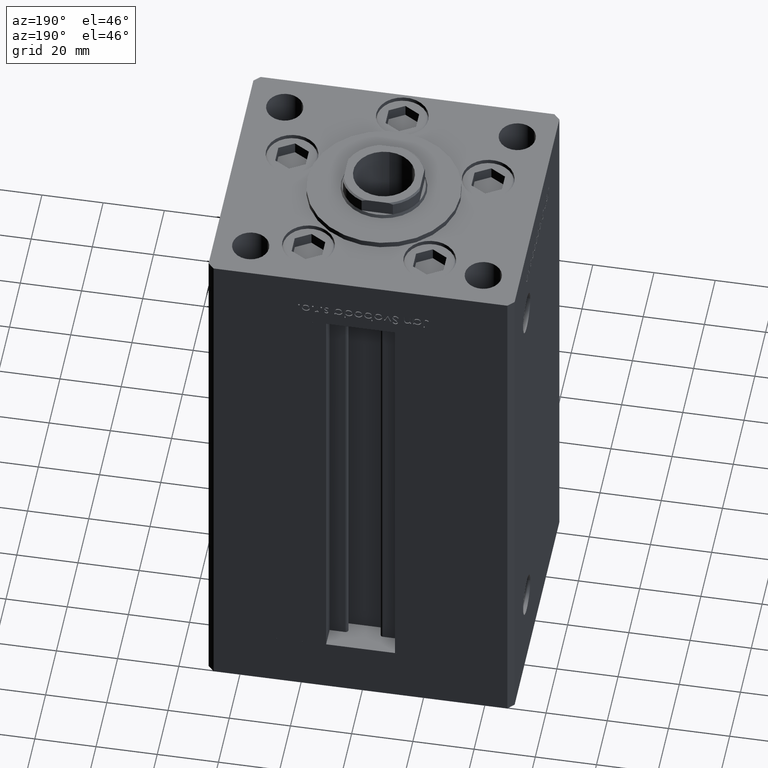
[diagram: clean part render]
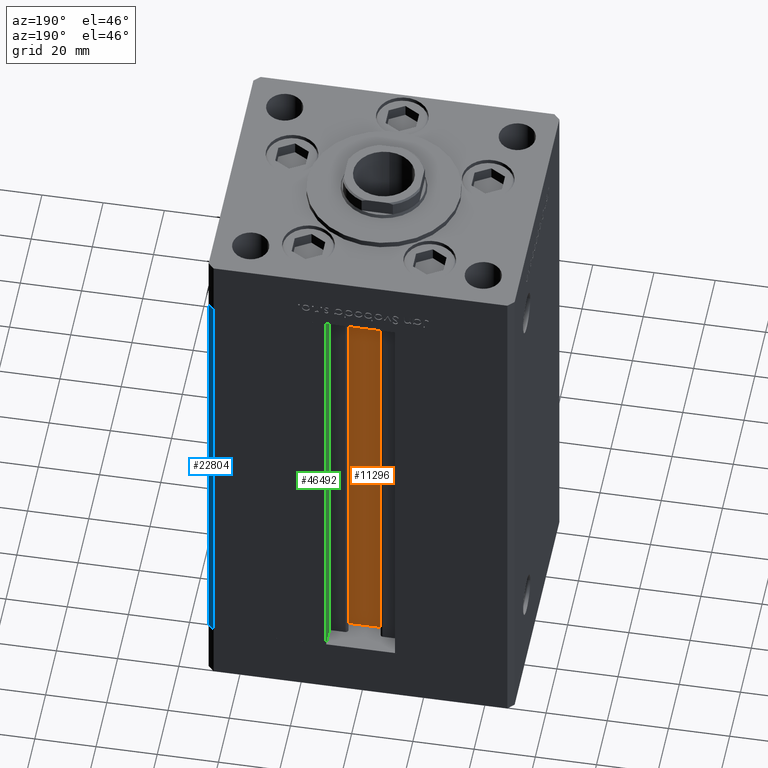
[diagram: same view with three faces highlighted in distinct colors, each labeled with its STEP entity id]
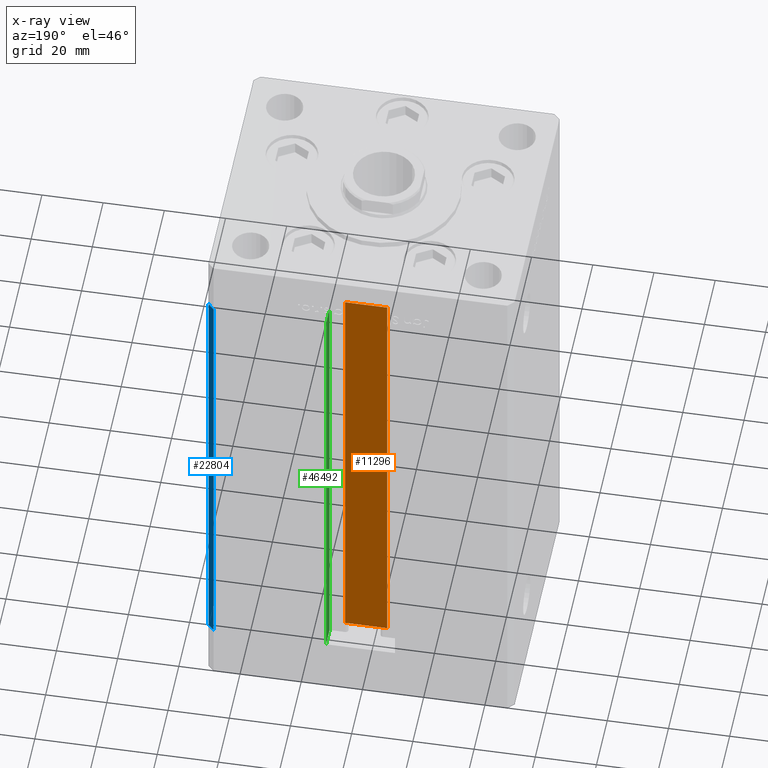
[diagram: x-ray of the same camera — body ghosted, the three highlighted faces saturated]
A machine part, auxiliary view with three faces highlighted in distinct colors.
The next image is the same camera in x-ray (body ghosted, the three faces saturated) — at least one of them is partly hidden behind the body in this view.
Their STEP definitions:

[orange] entity #11296 — the highlighted planar face has unit normal (0, -1, 0).
#436 = DIRECTION ( 'NONE',  ( -0.000000000000000000, -0.000000000000000000, 1.000000000000000000 ) ) ;
#898 = CARTESIAN_POINT ( 'NONE',  ( 0.000000000000000000, 32.99999999999986500, 148.5000000000000000 ) ) ;
#1678 = DIRECTION ( 'NONE',  ( -1.000000000000000000, 0.000000000000000000, 0.000000000000000000 ) ) ;
#1762 = ORIENTED_EDGE ( 'NONE', *, *, #40439, .F. ) ;
#4530 = EDGE_LOOP ( 'NONE', ( #1762, #32954, #31896, #10379 ) ) ;
#4649 = CARTESIAN_POINT ( 'NONE',  ( 6.876153656360465050, 32.99999999999986500, 0.000000000000000000 ) ) ;
#6583 = CARTESIAN_POINT ( 'NONE',  ( -6.876153656360465050, 32.99999999999986500, 148.5000000000000000 ) ) ;
#8326 = LINE ( 'NONE', #4649, #26543 ) ;
#9256 = CARTESIAN_POINT ( 'NONE',  ( 6.876153656360465050, 32.99999999999986500, 0.000000000000000000 ) ) ;
#9328 = CARTESIAN_POINT ( 'NONE',  ( 6.876153656360465050, 32.99999999999986500, 0.000000000000000000 ) ) ;
#10176 = VERTEX_POINT ( 'NONE', #6583 ) ;
#10359 = VERTEX_POINT ( 'NONE', #14063 ) ;
#10379 = ORIENTED_EDGE ( 'NONE', *, *, #42534, .F. ) ;
#11097 = CARTESIAN_POINT ( 'NONE',  ( -6.876153656360465050, 32.99999999999986500, 0.000000000000000000 ) ) ;
#11296 = ADVANCED_FACE ( 'NONE', ( #23302 ), #26974, .F. ) ;
#13190 = DIRECTION ( 'NONE',  ( 1.000000000000000000, -0.000000000000000000, -0.000000000000000000 ) ) ;
#14063 = CARTESIAN_POINT ( 'NONE',  ( -6.876153656360465050, 32.99999999999986500, 0.000000000000000000 ) ) ;
#15923 = CARTESIAN_POINT ( 'NONE',  ( 6.876153656360465050, 32.99999999999986500, 148.5000000000000000 ) ) ;
#16329 = EDGE_CURVE ( 'NONE', #10359, #30959, #37062, .T. ) ;
#18299 = VECTOR ( 'NONE', #27854, 1000.000000000000000 ) ;
#19612 = DIRECTION ( 'NONE',  ( 0.000000000000000000, -1.000000000000000000, -0.000000000000000000 ) ) ;
#19657 = VECTOR ( 'NONE', #13190, 1000.000000000000000 ) ;
#23302 = FACE_OUTER_BOUND ( 'NONE', #4530, .T. ) ;
#26543 = VECTOR ( 'NONE', #436, 1000.000000000000000 ) ;
#26974 = PLANE ( 'NONE',  #32959 ) ;
#27854 = DIRECTION ( 'NONE',  ( -0.000000000000000000, -0.000000000000000000, 1.000000000000000000 ) ) ;
#30959 = VERTEX_POINT ( 'NONE', #9328 ) ;
#31896 = ORIENTED_EDGE ( 'NONE', *, *, #45775, .T. ) ;
#32954 = ORIENTED_EDGE ( 'NONE', *, *, #16329, .F. ) ;
#32959 = AXIS2_PLACEMENT_3D ( 'NONE', #43232, #19612, #51882 ) ;
#34725 = LINE ( 'NONE', #11097, #18299 ) ;
#36857 = LINE ( 'NONE', #898, #42489 ) ;
#37062 = LINE ( 'NONE', #9256, #19657 ) ;
#40421 = VERTEX_POINT ( 'NONE', #15923 ) ;
#40439 = EDGE_CURVE ( 'NONE', #30959, #40421, #8326, .T. ) ;
#42489 = VECTOR ( 'NONE', #1678, 1000.000000000000000 ) ;
#42534 = EDGE_CURVE ( 'NONE', #40421, #10176, #36857, .T. ) ;
#43232 = CARTESIAN_POINT ( 'NONE',  ( 6.876153656360465050, 32.99999999999986500, 0.000000000000000000 ) ) ;
#45775 = EDGE_CURVE ( 'NONE', #10359, #10176, #34725, .T. ) ;
#51882 = DIRECTION ( 'NONE',  ( 0.000000000000000000, 0.000000000000000000, -1.000000000000000000 ) ) ;

[blue] entity #22804 — the highlighted planar face has unit normal (0.7071, 0.7071, 0).
#131 = DIRECTION ( 'NONE',  ( 0.7071067811865487940, -0.7071067811865463515, 0.000000000000000000 ) ) ;
#1805 = EDGE_CURVE ( 'NONE', #25333, #35540, #51248, .T. ) ;
#2948 = CARTESIAN_POINT ( 'NONE',  ( 50.00000000000001421, 41.49999999999999289, 0.000000000000000000 ) ) ;
#3739 = DIRECTION ( 'NONE',  ( -0.000000000000000000, -0.000000000000000000, -1.000000000000000000 ) ) ;
#3973 = VECTOR ( 'NONE', #10881, 1000.000000000000000 ) ;
#4497 = CARTESIAN_POINT ( 'NONE',  ( 48.00000000000000711, 43.50000000000000000, 148.5000000000000000 ) ) ;
#8774 = EDGE_CURVE ( 'NONE', #35540, #32266, #8817, .T. ) ;
#8817 = LINE ( 'NONE', #36093, #26307 ) ;
#10553 = DIRECTION ( 'NONE',  ( 0.7071067811865463515, 0.7071067811865487940, -0.000000000000000000 ) ) ;
#10881 = DIRECTION ( 'NONE',  ( -0.000000000000000000, -0.000000000000000000, -1.000000000000000000 ) ) ;
#11560 = ORIENTED_EDGE ( 'NONE', *, *, #8774, .F. ) ;
#12232 = CARTESIAN_POINT ( 'NONE',  ( 48.00000000000000711, 43.50000000000000000, 148.5000000000000000 ) ) ;
#13411 = ORIENTED_EDGE ( 'NONE', *, *, #43633, .T. ) ;
#14383 = VECTOR ( 'NONE', #3739, 1000.000000000000000 ) ;
#15009 = ORIENTED_EDGE ( 'NONE', *, *, #1805, .F. ) ;
#20363 = LINE ( 'NONE', #12232, #48930 ) ;
#22752 = ORIENTED_EDGE ( 'NONE', *, *, #34396, .T. ) ;
#22804 = ADVANCED_FACE ( 'NONE', ( #43317 ), #51201, .T. ) ;
#24557 = DIRECTION ( 'NONE',  ( 0.7071067811865487940, -0.7071067811865463515, 0.000000000000000000 ) ) ;
#25333 = VERTEX_POINT ( 'NONE', #4497 ) ;
#26307 = VECTOR ( 'NONE', #131, 1000.000000000000000 ) ;
#29307 = CARTESIAN_POINT ( 'NONE',  ( 48.00000000000000711, 43.50000000000000000, 0.000000000000000000 ) ) ;
#32266 = VERTEX_POINT ( 'NONE', #2948 ) ;
#34396 = EDGE_CURVE ( 'NONE', #25333, #38568, #20363, .T. ) ;
#35540 = VERTEX_POINT ( 'NONE', #29307 ) ;
#36000 = CARTESIAN_POINT ( 'NONE',  ( 48.00000000000000711, 43.50000000000000000, 148.5000000000000000 ) ) ;
#36093 = CARTESIAN_POINT ( 'NONE',  ( 48.00000000000000711, 43.50000000000000000, 0.000000000000000000 ) ) ;
#38568 = VERTEX_POINT ( 'NONE', #43992 ) ;
#38679 = LINE ( 'NONE', #41396, #3973 ) ;
#41396 = CARTESIAN_POINT ( 'NONE',  ( 50.00000000000001421, 41.49999999999999289, 148.5000000000000000 ) ) ;
#43317 = FACE_OUTER_BOUND ( 'NONE', #45553, .T. ) ;
#43563 = CARTESIAN_POINT ( 'NONE',  ( 48.00000000000000711, 43.50000000000000000, 148.5000000000000000 ) ) ;
#43633 = EDGE_CURVE ( 'NONE', #38568, #32266, #38679, .T. ) ;
#43992 = CARTESIAN_POINT ( 'NONE',  ( 50.00000000000001421, 41.49999999999999289, 148.5000000000000000 ) ) ;
#45553 = EDGE_LOOP ( 'NONE', ( #11560, #15009, #22752, #13411 ) ) ;
#47504 = DIRECTION ( 'NONE',  ( -0.7071067811865487940, 0.7071067811865463515, 0.000000000000000000 ) ) ;
#48930 = VECTOR ( 'NONE', #24557, 1000.000000000000000 ) ;
#49572 = AXIS2_PLACEMENT_3D ( 'NONE', #43563, #10553, #47504 ) ;
#51201 = PLANE ( 'NONE',  #49572 ) ;
#51248 = LINE ( 'NONE', #36000, #14383 ) ;

[green] entity #46492 — the highlighted planar face has unit normal (1, 0, 0).
#38 = FACE_OUTER_BOUND ( 'NONE', #25808, .T. ) ;
#1797 = EDGE_CURVE ( 'NONE', #12895, #44504, #51507, .T. ) ;
#2163 = VERTEX_POINT ( 'NONE', #3416 ) ;
#2311 = CARTESIAN_POINT ( 'NONE',  ( 11.24999999999999822, 43.50000000000000000, 0.000000000000000000 ) ) ;
#2656 = VECTOR ( 'NONE', #20001, 1000.000000000000000 ) ;
#3258 = ORIENTED_EDGE ( 'NONE', *, *, #1797, .F. ) ;
#3416 = CARTESIAN_POINT ( 'NONE',  ( 11.24999999999999822, 36.99999999999999289, 0.000000000000000000 ) ) ;
#4120 = DIRECTION ( 'NONE',  ( -0.000000000000000000, -0.000000000000000000, 1.000000000000000000 ) ) ;
#4514 = CARTESIAN_POINT ( 'NONE',  ( 11.24999999999999112, 43.50000000000000000, 148.5000000000000000 ) ) ;
#7686 = DIRECTION ( 'NONE',  ( 0.000000000000000000, 0.000000000000000000, -1.000000000000000000 ) ) ;
#8743 = EDGE_CURVE ( 'NONE', #2163, #50704, #40825, .T. ) ;
#9197 = DIRECTION ( 'NONE',  ( -0.000000000000000000, -0.000000000000000000, 1.000000000000000000 ) ) ;
#11378 = CARTESIAN_POINT ( 'NONE',  ( 11.24999999999999822, 36.99999999999999289, 0.000000000000000000 ) ) ;
#12895 = VERTEX_POINT ( 'NONE', #4514 ) ;
#13513 = ORIENTED_EDGE ( 'NONE', *, *, #19058, .T. ) ;
#13910 = LINE ( 'NONE', #17840, #28275 ) ;
#17840 = CARTESIAN_POINT ( 'NONE',  ( 11.24999999999999822, 43.50000000000000000, 0.000000000000000000 ) ) ;
#19058 = EDGE_CURVE ( 'NONE', #2163, #44504, #37175, .T. ) ;
#20001 = DIRECTION ( 'NONE',  ( -0.000000000000000000, -1.000000000000000000, 0.000000000000000000 ) ) ;
#25624 = VECTOR ( 'NONE', #4120, 1000.000000000000000 ) ;
#25808 = EDGE_LOOP ( 'NONE', ( #48750, #31467, #13513, #3258 ) ) ;
#27620 = PLANE ( 'NONE',  #31620 ) ;
#28229 = CARTESIAN_POINT ( 'NONE',  ( 11.24999999999999822, 36.99999999999999289, 0.000000000000000000 ) ) ;
#28275 = VECTOR ( 'NONE', #9197, 1000.000000000000000 ) ;
#31467 = ORIENTED_EDGE ( 'NONE', *, *, #8743, .F. ) ;
#31620 = AXIS2_PLACEMENT_3D ( 'NONE', #11378, #43617, #7686 ) ;
#36360 = VECTOR ( 'NONE', #45270, 1000.000000000000000 ) ;
#37175 = LINE ( 'NONE', #44264, #25624 ) ;
#40825 = LINE ( 'NONE', #28229, #36360 ) ;
#43617 = DIRECTION ( 'NONE',  ( 1.000000000000000000, -0.000000000000000000, 0.000000000000000000 ) ) ;
#44264 = CARTESIAN_POINT ( 'NONE',  ( 11.24999999999999822, 36.99999999999999289, 0.000000000000000000 ) ) ;
#44504 = VERTEX_POINT ( 'NONE', #45541 ) ;
#45270 = DIRECTION ( 'NONE',  ( 0.000000000000000000, 1.000000000000000000, 0.000000000000000000 ) ) ;
#45541 = CARTESIAN_POINT ( 'NONE',  ( 11.24999999999999822, 36.99999999999999289, 148.5000000000000000 ) ) ;
#46492 = ADVANCED_FACE ( 'NONE', ( #38 ), #27620, .F. ) ;
#47035 = CARTESIAN_POINT ( 'NONE',  ( 11.24999999999999822, 0.000000000000000000, 148.5000000000000000 ) ) ;
#48264 = EDGE_CURVE ( 'NONE', #50704, #12895, #13910, .T. ) ;
#48750 = ORIENTED_EDGE ( 'NONE', *, *, #48264, .F. ) ;
#50704 = VERTEX_POINT ( 'NONE', #2311 ) ;
#51507 = LINE ( 'NONE', #47035, #2656 ) ;